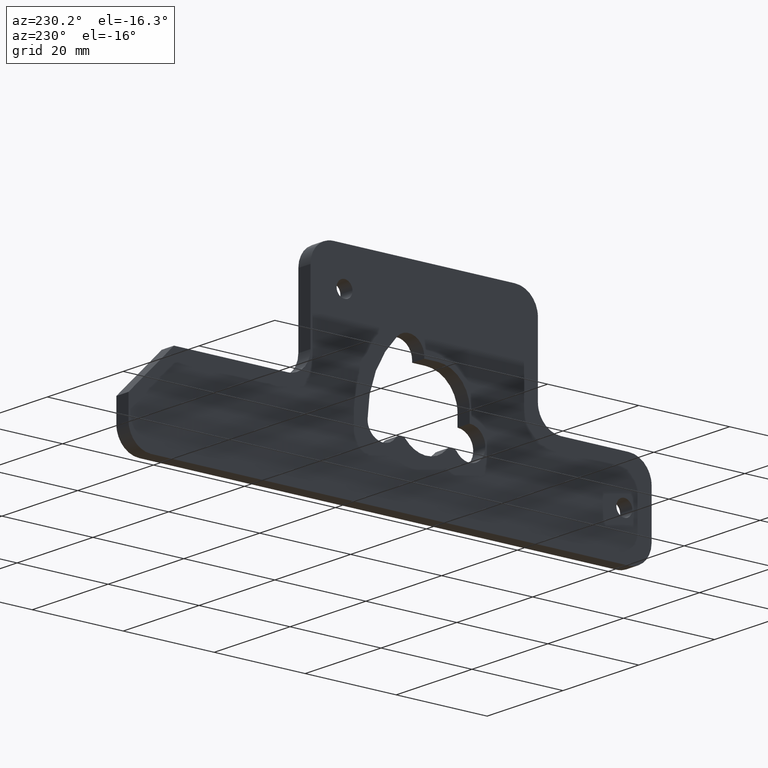
[diagram: clean part render]
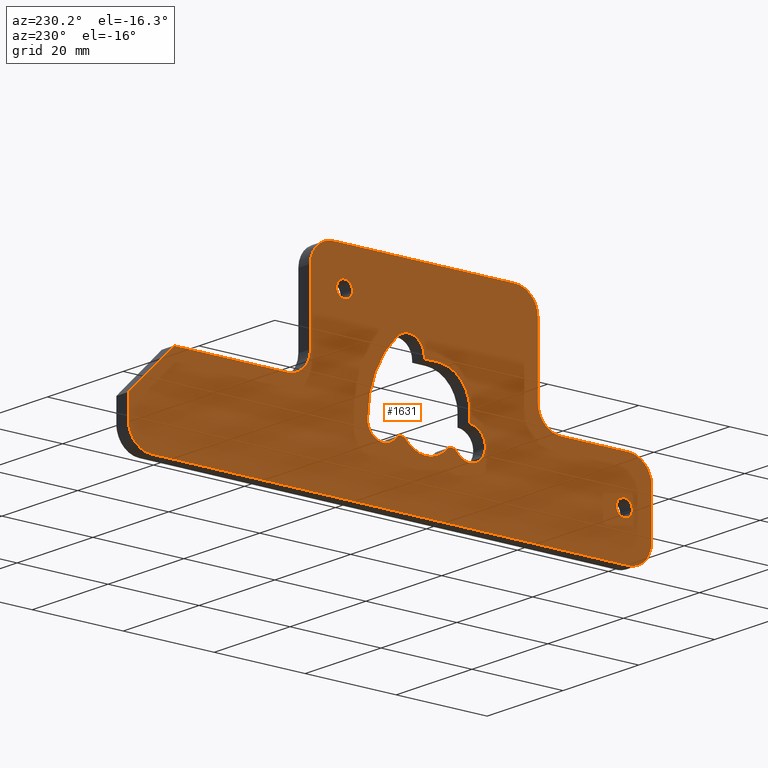
[diagram: same view with one face highlighted and labeled with its STEP entity id]
A machine part, auxiliary view. The second image highlights one B-rep face of the part: STEP entity #1631.
In plain terms, the highlighted face is a freeform B-spline surface patch.
Its self-contained STEP definition (entity closure, byte-faithful):
#62=CARTESIAN_POINT('',(0.0,-43.500000000000000,-3.249999999999901));
#63=VERTEX_POINT('',#62);
#64=CARTESIAN_POINT('',(8.326673E-017,-45.244605333949757,-4.862696581418814));
#65=VERTEX_POINT('',#64);
#66=CARTESIAN_POINT('',(0.0,-43.500000000000000,-3.249999999999901));
#67=CARTESIAN_POINT('',(0.0,-45.117683358434938,-3.249999999999901));
#68=CARTESIAN_POINT('',(8.326673E-017,-45.244605333949778,-4.862696581418814));
#76=(BOUNDED_CURVE()B_SPLINE_CURVE(2,(#66,#67,#68),.UNSPECIFIED.,.F.,.U.)B_SPLINE_CURVE_WITH_KNOTS((3,3),(0.0,0.236331300424976),.UNSPECIFIED.)CURVE()GEOMETRIC_REPRESENTATION_ITEM()RATIONAL_B_SPLINE_CURVE((1.0,0.723120658848639,0.969723355738171))REPRESENTATION_ITEM(''));
#77=EDGE_CURVE('',#63,#65,#76,.T.);
#79=CARTESIAN_POINT('',(8.326673E-017,-41.755394666050243,-5.137303418580987));
#80=VERTEX_POINT('',#79);
#81=CARTESIAN_POINT('',(8.326673E-017,-41.755394666050236,-5.137303418580987));
#82=CARTESIAN_POINT('',(0.0,-41.749999999999986,-5.068757688325587));
#83=CARTESIAN_POINT('',(0.0,-41.749999999999993,-4.999999999999901));
#84=CARTESIAN_POINT('',(0.0,-41.749999999999986,-3.249999999999901));
#85=CARTESIAN_POINT('',(0.0,-43.500000000000000,-3.249999999999901));
#93=(BOUNDED_CURVE()B_SPLINE_CURVE(2,(#81,#82,#83,#84,#85),.UNSPECIFIED.,.F.,.U.)B_SPLINE_CURVE_WITH_KNOTS((3,2,3),(0.736331300424976,0.750000000000000,1.0),.UNSPECIFIED.)CURVE()GEOMETRIC_REPRESENTATION_ITEM()RATIONAL_B_SPLINE_CURVE((0.969723355738171,0.983986122337908,1.0,0.707106781186547,1.0))REPRESENTATION_ITEM(''));
#94=EDGE_CURVE('',#80,#63,#93,.T.);
#161=CARTESIAN_POINT('',(0.0,-43.500000000000000,-6.749999999999901));
#162=VERTEX_POINT('',#161);
#163=CARTESIAN_POINT('',(8.326673E-017,-45.244605333949764,-4.862696581418815));
#164=CARTESIAN_POINT('',(0.0,-45.250000000000000,-4.931242311674215));
#165=CARTESIAN_POINT('',(0.0,-45.250000000000000,-4.999999999999901));
#166=CARTESIAN_POINT('',(0.0,-45.250000000000000,-6.749999999999902));
#167=CARTESIAN_POINT('',(0.0,-43.500000000000000,-6.749999999999901));
#175=(BOUNDED_CURVE()B_SPLINE_CURVE(2,(#163,#164,#165,#166,#167),.UNSPECIFIED.,.F.,.U.)B_SPLINE_CURVE_WITH_KNOTS((3,2,3),(0.236331300424976,0.250000000000000,0.500000000000000),.UNSPECIFIED.)CURVE()GEOMETRIC_REPRESENTATION_ITEM()RATIONAL_B_SPLINE_CURVE((0.969723355738171,0.983986122337908,1.0,0.707106781186547,1.0))REPRESENTATION_ITEM(''));
#176=EDGE_CURVE('',#65,#162,#175,.T.);
#210=CARTESIAN_POINT('',(0.0,-43.500000000000000,-6.749999999999901));
#211=CARTESIAN_POINT('',(0.0,-41.882316641565069,-6.749999999999901));
#212=CARTESIAN_POINT('',(8.326673E-017,-41.755394666050236,-5.137303418580987));
#220=(BOUNDED_CURVE()B_SPLINE_CURVE(2,(#210,#211,#212),.UNSPECIFIED.,.F.,.U.)B_SPLINE_CURVE_WITH_KNOTS((3,3),(0.500000000000000,0.736331300424975),.UNSPECIFIED.)CURVE()GEOMETRIC_REPRESENTATION_ITEM()RATIONAL_B_SPLINE_CURVE((1.0,0.723120658848641,0.969723355738169))REPRESENTATION_ITEM(''));
#221=EDGE_CURVE('',#162,#80,#220,.T.);
#244=CARTESIAN_POINT('',(0.0,18.0,23.750000000000000));
#245=VERTEX_POINT('',#244);
#246=CARTESIAN_POINT('',(8.326673E-017,16.255394666050240,22.137303418581080));
#247=VERTEX_POINT('',#246);
#248=CARTESIAN_POINT('',(0.0,18.0,23.750000000000000));
#249=CARTESIAN_POINT('',(0.0,16.382316641565069,23.749999999999996));
#250=CARTESIAN_POINT('',(8.326673E-017,16.255394666050247,22.137303418581080));
#258=(BOUNDED_CURVE()B_SPLINE_CURVE(2,(#248,#249,#250),.UNSPECIFIED.,.F.,.U.)B_SPLINE_CURVE_WITH_KNOTS((3,3),(0.0,0.236331300424976),.UNSPECIFIED.)CURVE()GEOMETRIC_REPRESENTATION_ITEM()RATIONAL_B_SPLINE_CURVE((1.0,0.723120658848639,0.969723355738171))REPRESENTATION_ITEM(''));
#259=EDGE_CURVE('',#245,#247,#258,.T.);
#261=CARTESIAN_POINT('',(8.326673E-017,19.744605333949760,21.862696581418920));
#262=VERTEX_POINT('',#261);
#263=CARTESIAN_POINT('',(8.326673E-017,19.744605333949760,21.862696581418920));
#264=CARTESIAN_POINT('',(0.0,19.749999999999996,21.931242311674318));
#265=CARTESIAN_POINT('',(0.0,19.750000000000000,22.0));
#266=CARTESIAN_POINT('',(0.0,19.749999999999996,23.749999999999996));
#267=CARTESIAN_POINT('',(0.0,18.0,23.750000000000000));
#275=(BOUNDED_CURVE()B_SPLINE_CURVE(2,(#263,#264,#265,#266,#267),.UNSPECIFIED.,.F.,.U.)B_SPLINE_CURVE_WITH_KNOTS((3,2,3),(0.736331300424976,0.750000000000000,1.0),.UNSPECIFIED.)CURVE()GEOMETRIC_REPRESENTATION_ITEM()RATIONAL_B_SPLINE_CURVE((0.969723355738171,0.983986122337908,1.0,0.707106781186547,1.0))REPRESENTATION_ITEM(''));
#276=EDGE_CURVE('',#262,#245,#275,.T.);
#343=CARTESIAN_POINT('',(0.0,18.0,20.250000000000000));
#344=VERTEX_POINT('',#343);
#345=CARTESIAN_POINT('',(8.326673E-017,16.255394666050247,22.137303418581080));
#346=CARTESIAN_POINT('',(0.0,16.250000000000000,22.068757688325686));
#347=CARTESIAN_POINT('',(0.0,16.250000000000000,22.0));
#348=CARTESIAN_POINT('',(0.0,16.249999999999993,20.249999999999993));
#349=CARTESIAN_POINT('',(0.0,18.0,20.250000000000000));
#357=(BOUNDED_CURVE()B_SPLINE_CURVE(2,(#345,#346,#347,#348,#349),.UNSPECIFIED.,.F.,.U.)B_SPLINE_CURVE_WITH_KNOTS((3,2,3),(0.236331300424976,0.250000000000000,0.500000000000000),.UNSPECIFIED.)CURVE()GEOMETRIC_REPRESENTATION_ITEM()RATIONAL_B_SPLINE_CURVE((0.969723355738171,0.983986122337908,1.0,0.707106781186547,1.0))REPRESENTATION_ITEM(''));
#358=EDGE_CURVE('',#247,#344,#357,.T.);
#392=CARTESIAN_POINT('',(0.0,18.0,20.250000000000000));
#393=CARTESIAN_POINT('',(0.0,19.617683358434945,20.250000000000004));
#394=CARTESIAN_POINT('',(8.326673E-017,19.744605333949767,21.862696581418916));
#402=(BOUNDED_CURVE()B_SPLINE_CURVE(2,(#392,#393,#394),.UNSPECIFIED.,.F.,.U.)B_SPLINE_CURVE_WITH_KNOTS((3,3),(0.500000000000000,0.736331300424977),.UNSPECIFIED.)CURVE()GEOMETRIC_REPRESENTATION_ITEM()RATIONAL_B_SPLINE_CURVE((1.0,0.723120658848638,0.969723355738173))REPRESENTATION_ITEM(''));
#403=EDGE_CURVE('',#344,#262,#402,.T.);
#426=CARTESIAN_POINT('',(0.0,6.764626871509701,-2.102435218486835));
#427=VERTEX_POINT('',#426);
#428=CARTESIAN_POINT('',(0.0,12.949999999999999,0.0));
#429=VERTEX_POINT('',#428);
#430=CARTESIAN_POINT('',(0.0,6.764626871509701,-2.102435218486837));
#431=CARTESIAN_POINT('',(0.0,8.270568713959827,-4.061740700380274));
#432=CARTESIAN_POINT('',(0.0,10.610284356979861,-3.266461180948823));
#433=CARTESIAN_POINT('',(0.0,12.949999999999891,-2.471181661517373));
#434=CARTESIAN_POINT('',(0.0,12.949999999999999,0.0));
#442=(BOUNDED_CURVE()B_SPLINE_CURVE(2,(#430,#431,#432,#433,#434),.UNSPECIFIED.,.F.,.U.)B_SPLINE_CURVE_WITH_KNOTS((3,2,3),(0.0,0.500000000000000,1.0),.UNSPECIFIED.)CURVE()GEOMETRIC_REPRESENTATION_ITEM()RATIONAL_B_SPLINE_CURVE((1.0,0.812964191323276,1.0,0.812964191323276,1.0))REPRESENTATION_ITEM(''));
#443=EDGE_CURVE('',#427,#429,#442,.T.);
#491=CARTESIAN_POINT('',(0.0,6.374547395093690,15.874547395093799));
#492=VERTEX_POINT('',#491);
#493=CARTESIAN_POINT('',(0.0,12.949999999999999,0.0));
#494=CARTESIAN_POINT('',(0.0,12.950000000000003,9.299094475276030));
#495=CARTESIAN_POINT('',(0.0,6.374547395093690,15.874547395093799));
#503=(BOUNDED_CURVE()B_SPLINE_CURVE(2,(#493,#494,#495),.UNSPECIFIED.,.F.,.U.)CURVE()GEOMETRIC_REPRESENTATION_ITEM()QUASI_UNIFORM_CURVE()RATIONAL_B_SPLINE_CURVE((1.0,0.923879532511286,1.0))REPRESENTATION_ITEM(''));
#504=EDGE_CURVE('',#429,#492,#503,.T.);
#548=CARTESIAN_POINT('',(0.0,0.485029000000000,13.435029000000201));
#549=VERTEX_POINT('',#548);
#550=CARTESIAN_POINT('',(0.0,6.374547395093682,15.874547395093790));
#551=CARTESIAN_POINT('',(0.0,4.744513316680972,17.504581473506498));
#552=CARTESIAN_POINT('',(0.0,2.614771158340536,16.622413387164141));
#553=CARTESIAN_POINT('',(0.0,0.485029000000099,15.740245300821782));
#554=CARTESIAN_POINT('',(0.0,0.485029000000000,13.435029000000201));
#562=(BOUNDED_CURVE()B_SPLINE_CURVE(2,(#550,#551,#552,#553,#554),.UNSPECIFIED.,.F.,.U.)B_SPLINE_CURVE_WITH_KNOTS((3,2,3),(0.0,0.500000000000000,1.0),.UNSPECIFIED.)CURVE()GEOMETRIC_REPRESENTATION_ITEM()RATIONAL_B_SPLINE_CURVE((1.0,0.831469612302546,1.0,0.831469612302546,1.0))REPRESENTATION_ITEM(''));
#563=EDGE_CURVE('',#492,#549,#562,.T.);
#596=CARTESIAN_POINT('',(0.0,0.485029000000000,13.0));
#597=VERTEX_POINT('',#596);
#598=CARTESIAN_POINT('',(0.0,0.485029000000000,13.0));
#599=CARTESIAN_POINT('',(0.0,0.485029000000000,13.435029000000201));
#600=QUASI_UNIFORM_CURVE('',1,(#598,#599),.UNSPECIFIED.,.F.,.U.);
#601=EDGE_CURVE('',#597,#549,#600,.T.);
#624=CARTESIAN_POINT('',(0.0,-2.500000000000000,13.0));
#625=VERTEX_POINT('',#624);
#626=CARTESIAN_POINT('',(0.0,-2.500000000000000,13.0));
#627=CARTESIAN_POINT('',(0.0,0.485029000000000,13.0));
#628=QUASI_UNIFORM_CURVE('',1,(#626,#627),.UNSPECIFIED.,.F.,.U.);
#629=EDGE_CURVE('',#625,#597,#628,.T.);
#661=CARTESIAN_POINT('',(0.0,-9.500000000000000,6.000000000000100));
#662=VERTEX_POINT('',#661);
#663=CARTESIAN_POINT('',(0.0,-2.500000000000000,13.0));
#664=CARTESIAN_POINT('',(0.0,-9.500000000000000,13.000000000000099));
#665=CARTESIAN_POINT('',(0.0,-9.500000000000000,6.000000000000100));
#673=(BOUNDED_CURVE()B_SPLINE_CURVE(2,(#663,#664,#665),.UNSPECIFIED.,.F.,.U.)CURVE()GEOMETRIC_REPRESENTATION_ITEM()QUASI_UNIFORM_CURVE()RATIONAL_B_SPLINE_CURVE((1.0,0.707106781186547,1.0))REPRESENTATION_ITEM(''));
#674=EDGE_CURVE('',#625,#662,#673,.T.);
#705=CARTESIAN_POINT('',(0.0,-9.500000000000000,3.450000000000000));
#706=VERTEX_POINT('',#705);
#707=CARTESIAN_POINT('',(0.0,-9.500000000000000,3.450000000000000));
#708=CARTESIAN_POINT('',(0.0,-9.500000000000000,6.000000000000100));
#709=QUASI_UNIFORM_CURVE('',1,(#707,#708),.UNSPECIFIED.,.F.,.U.);
#710=EDGE_CURVE('',#706,#662,#709,.T.);
#750=CARTESIAN_POINT('',(0.0,-6.764626664560860,-2.102434731092480));
#751=VERTEX_POINT('',#750);
#752=CARTESIAN_POINT('',(0.0,-9.500000000000000,3.449999999999999));
#753=CARTESIAN_POINT('',(0.0,-12.268154983296283,3.449999999999999));
#754=CARTESIAN_POINT('',(0.0,-12.868020258563091,0.747622590555284));
#755=CARTESIAN_POINT('',(0.0,-13.467885533829898,-1.954754818889431));
#756=CARTESIAN_POINT('',(0.0,-10.959714800434559,-3.125977079473279));
#757=CARTESIAN_POINT('',(0.0,-8.451544067039222,-4.297199340057126));
#758=CARTESIAN_POINT('',(0.0,-6.764626664560860,-2.102434731092480));
#766=(BOUNDED_CURVE()B_SPLINE_CURVE(2,(#752,#753,#754,#755,#756,#757,#758),.UNSPECIFIED.,.F.,.U.)B_SPLINE_CURVE_WITH_KNOTS((3,2,2,3),(0.0,0.333333333333333,0.666666666666667,1.0),.UNSPECIFIED.)CURVE()GEOMETRIC_REPRESENTATION_ITEM()RATIONAL_B_SPLINE_CURVE((1.0,0.779968653267858,1.0,0.779968653267858,1.0,0.779968653267858,1.0))REPRESENTATION_ITEM(''));
#767=EDGE_CURVE('',#706,#751,#766,.T.);
#811=CARTESIAN_POINT('',(0.0,-4.460267373332930,-2.013229990715830));
#812=VERTEX_POINT('',#811);
#813=CARTESIAN_POINT('',(0.0,-4.460267373332930,-2.013229990715830));
#814=CARTESIAN_POINT('',(0.0,-4.930644157821511,-1.490456621152774));
#815=CARTESIAN_POINT('',(0.0,-5.633357690820511,-1.517659669694363));
#816=CARTESIAN_POINT('',(0.0,-6.336071223819511,-1.544862718235952));
#817=CARTESIAN_POINT('',(0.0,-6.764626664560861,-2.102434731092479));
#825=(BOUNDED_CURVE()B_SPLINE_CURVE(2,(#813,#814,#815,#816,#817),.UNSPECIFIED.,.F.,.U.)B_SPLINE_CURVE_WITH_KNOTS((3,2,3),(0.0,0.500000000000000,1.0),.UNSPECIFIED.)CURVE()GEOMETRIC_REPRESENTATION_ITEM()RATIONAL_B_SPLINE_CURVE((1.0,0.905432286971826,1.0,0.905432286971826,1.0))REPRESENTATION_ITEM(''));
#826=EDGE_CURVE('',#812,#751,#825,.T.);
#868=CARTESIAN_POINT('',(0.0,4.460267373332910,-2.013229990715850));
#869=VERTEX_POINT('',#868);
#870=CARTESIAN_POINT('',(0.0,-4.460267373332929,-2.013229990715828));
#871=CARTESIAN_POINT('',(0.0,-2.672624544209053,-3.999999999999901));
#872=CARTESIAN_POINT('',(0.0,0.0,-3.999999999999900));
#873=CARTESIAN_POINT('',(0.0,2.672624544209034,-3.999999999999901));
#874=CARTESIAN_POINT('',(0.0,4.460267373332909,-2.013229990715852));
#882=(BOUNDED_CURVE()B_SPLINE_CURVE(2,(#870,#871,#872,#873,#874),.UNSPECIFIED.,.F.,.U.)B_SPLINE_CURVE_WITH_KNOTS((3,2,3),(0.0,0.500000000000000,1.0),.UNSPECIFIED.)CURVE()GEOMETRIC_REPRESENTATION_ITEM()RATIONAL_B_SPLINE_CURVE((1.0,0.913474593275402,1.0,0.913474593275402,1.0))REPRESENTATION_ITEM(''));
#883=EDGE_CURVE('',#812,#869,#882,.T.);
#925=CARTESIAN_POINT('',(0.0,6.764626871509701,-2.102435218486835));
#926=CARTESIAN_POINT('',(0.0,6.336071631441110,-1.544862854254390));
#927=CARTESIAN_POINT('',(0.0,5.633357946904417,-1.517659679607753));
#928=CARTESIAN_POINT('',(0.0,4.930644262367725,-1.490456504961116));
#929=CARTESIAN_POINT('',(0.0,4.460267373332910,-2.013229990715850));
#937=(BOUNDED_CURVE()B_SPLINE_CURVE(2,(#925,#926,#927,#928,#929),.UNSPECIFIED.,.F.,.U.)B_SPLINE_CURVE_WITH_KNOTS((3,2,3),(0.0,0.500000000000000,1.0),.UNSPECIFIED.)CURVE()GEOMETRIC_REPRESENTATION_ITEM()RATIONAL_B_SPLINE_CURVE((1.0,0.905432250709606,1.0,0.905432250709606,1.0))REPRESENTATION_ITEM(''));
#938=EDGE_CURVE('',#427,#869,#937,.T.);
#974=CARTESIAN_POINT('',(0.0,-29.500000000000000,5.000000000000100));
#975=VERTEX_POINT('',#974);
#976=CARTESIAN_POINT('',(0.0,-24.500000000000000,10.0));
#977=VERTEX_POINT('',#976);
#978=CARTESIAN_POINT('',(0.0,-29.500000000000000,5.0));
#979=CARTESIAN_POINT('',(0.0,-24.500000000000004,5.000000000000001));
#980=CARTESIAN_POINT('',(0.0,-24.500000000000000,10.0));
#988=(BOUNDED_CURVE()B_SPLINE_CURVE(2,(#978,#979,#980),.UNSPECIFIED.,.F.,.U.)CURVE()GEOMETRIC_REPRESENTATION_ITEM()QUASI_UNIFORM_CURVE()RATIONAL_B_SPLINE_CURVE((1.0,0.707106781186548,1.0))REPRESENTATION_ITEM(''));
#989=EDGE_CURVE('',#975,#977,#988,.T.);
#1026=CARTESIAN_POINT('',(0.0,-44.500000000000000,5.0));
#1027=VERTEX_POINT('',#1026);
#1028=CARTESIAN_POINT('',(0.0,-44.500000000000000,5.0));
#1029=CARTESIAN_POINT('',(0.0,-29.500000000000000,5.000000000000100));
#1030=QUASI_UNIFORM_CURVE('',1,(#1028,#1029),.UNSPECIFIED.,.F.,.U.);
#1031=EDGE_CURVE('',#1027,#975,#1030,.T.);
#1063=CARTESIAN_POINT('',(0.0,-49.500000000000000,-3.030901E-015));
#1064=VERTEX_POINT('',#1063);
#1065=CARTESIAN_POINT('',(0.0,-44.500000000000000,4.999999999999997));
#1066=CARTESIAN_POINT('',(0.0,-49.499999999999993,4.999999999999997));
#1067=CARTESIAN_POINT('',(0.0,-49.499999999999993,-2.724749E-015));
#1075=(BOUNDED_CURVE()B_SPLINE_CURVE(2,(#1065,#1066,#1067),.UNSPECIFIED.,.F.,.U.)CURVE()GEOMETRIC_REPRESENTATION_ITEM()QUASI_UNIFORM_CURVE()RATIONAL_B_SPLINE_CURVE((1.0,0.707106781186548,1.0))REPRESENTATION_ITEM(''));
#1076=EDGE_CURVE('',#1027,#1064,#1075,.T.);
#1107=CARTESIAN_POINT('',(0.0,-49.500000000000000,-9.999999999999799));
#1108=VERTEX_POINT('',#1107);
#1109=CARTESIAN_POINT('',(0.0,-49.500000000000000,-9.999999999999799));
#1110=CARTESIAN_POINT('',(0.0,-49.500000000000000,-3.030901E-015));
#1111=QUASI_UNIFORM_CURVE('',1,(#1109,#1110),.UNSPECIFIED.,.F.,.U.);
#1112=EDGE_CURVE('',#1108,#1064,#1111,.T.);
#1144=CARTESIAN_POINT('',(0.0,-44.500000000000000,-15.0));
#1145=VERTEX_POINT('',#1144);
#1146=CARTESIAN_POINT('',(0.0,-49.499999999999993,-9.999999999999799));
#1147=CARTESIAN_POINT('',(0.0,-49.499999999999993,-14.999999999999796));
#1148=CARTESIAN_POINT('',(0.0,-44.500000000000000,-15.0));
#1156=(BOUNDED_CURVE()B_SPLINE_CURVE(2,(#1146,#1147,#1148),.UNSPECIFIED.,.F.,.U.)CURVE()GEOMETRIC_REPRESENTATION_ITEM()QUASI_UNIFORM_CURVE()RATIONAL_B_SPLINE_CURVE((1.0,0.707106781186548,1.0))REPRESENTATION_ITEM(''));
#1157=EDGE_CURVE('',#1108,#1145,#1156,.T.);
#1188=CARTESIAN_POINT('',(0.0,60.500000000000000,-14.999999999999799));
#1189=VERTEX_POINT('',#1188);
#1190=CARTESIAN_POINT('',(0.0,60.500000000000000,-14.999999999999799));
#1191=CARTESIAN_POINT('',(0.0,-44.500000000000000,-15.0));
#1192=QUASI_UNIFORM_CURVE('',1,(#1190,#1191),.UNSPECIFIED.,.F.,.U.);
#1193=EDGE_CURVE('',#1189,#1145,#1192,.T.);
#1225=CARTESIAN_POINT('',(0.0,65.500000000000000,-9.999999999999799));
#1226=VERTEX_POINT('',#1225);
#1227=CARTESIAN_POINT('',(0.0,60.500000000000000,-14.999999999999799));
#1228=CARTESIAN_POINT('',(0.0,65.500000000000000,-14.999999999999796));
#1229=CARTESIAN_POINT('',(0.0,65.500000000000000,-9.999999999999799));
#1237=(BOUNDED_CURVE()B_SPLINE_CURVE(2,(#1227,#1228,#1229),.UNSPECIFIED.,.F.,.U.)CURVE()GEOMETRIC_REPRESENTATION_ITEM()QUASI_UNIFORM_CURVE()RATIONAL_B_SPLINE_CURVE((1.0,0.707106781186548,1.0))REPRESENTATION_ITEM(''));
#1238=EDGE_CURVE('',#1189,#1226,#1237,.T.);
#1269=CARTESIAN_POINT('',(0.0,65.500000000000000,-4.999999999999901));
#1270=VERTEX_POINT('',#1269);
#1271=CARTESIAN_POINT('',(0.0,65.500000000000000,-4.999999999999901));
#1272=CARTESIAN_POINT('',(0.0,65.500000000000000,-9.999999999999799));
#1273=QUASI_UNIFORM_CURVE('',1,(#1271,#1272),.UNSPECIFIED.,.F.,.U.);
#1274=EDGE_CURVE('',#1270,#1226,#1273,.T.);
#1297=CARTESIAN_POINT('',(0.0,55.500000000000000,5.000000000000100));
#1298=VERTEX_POINT('',#1297);
#1299=CARTESIAN_POINT('',(0.0,55.500000000000000,5.000000000000100));
#1300=CARTESIAN_POINT('',(0.0,65.500000000000000,-4.999999999999901));
#1301=QUASI_UNIFORM_CURVE('',1,(#1299,#1300),.UNSPECIFIED.,.F.,.U.);
#1302=EDGE_CURVE('',#1298,#1270,#1301,.T.);
#1325=CARTESIAN_POINT('',(0.0,30.500000000000000,5.000000000000100));
#1326=VERTEX_POINT('',#1325);
#1327=CARTESIAN_POINT('',(0.0,30.500000000000000,5.000000000000100));
#1328=CARTESIAN_POINT('',(0.0,55.500000000000000,5.000000000000100));
#1329=QUASI_UNIFORM_CURVE('',1,(#1327,#1328),.UNSPECIFIED.,.F.,.U.);
#1330=EDGE_CURVE('',#1326,#1298,#1329,.T.);
#1362=CARTESIAN_POINT('',(0.0,25.500000000000000,10.0));
#1363=VERTEX_POINT('',#1362);
#1364=CARTESIAN_POINT('',(0.0,25.500000000000000,10.0));
#1365=CARTESIAN_POINT('',(0.0,25.499999999999993,5.000000000000001));
#1366=CARTESIAN_POINT('',(0.0,30.500000000000000,5.000000000000100));
#1374=(BOUNDED_CURVE()B_SPLINE_CURVE(2,(#1364,#1365,#1366),.UNSPECIFIED.,.F.,.U.)CURVE()GEOMETRIC_REPRESENTATION_ITEM()QUASI_UNIFORM_CURVE()RATIONAL_B_SPLINE_CURVE((1.0,0.707106781186548,1.0))REPRESENTATION_ITEM(''));
#1375=EDGE_CURVE('',#1363,#1326,#1374,.T.);
#1406=CARTESIAN_POINT('',(0.0,25.500000000000000,25.0));
#1407=VERTEX_POINT('',#1406);
#1408=CARTESIAN_POINT('',(0.0,25.500000000000000,25.0));
#1409=CARTESIAN_POINT('',(0.0,25.500000000000000,10.0));
#1410=QUASI_UNIFORM_CURVE('',1,(#1408,#1409),.UNSPECIFIED.,.F.,.U.);
#1411=EDGE_CURVE('',#1407,#1363,#1410,.T.);
#1443=CARTESIAN_POINT('',(0.0,20.500000000000000,30.0));
#1444=VERTEX_POINT('',#1443);
#1445=CARTESIAN_POINT('',(0.0,25.500000000000000,25.0));
#1446=CARTESIAN_POINT('',(0.0,25.500000000000007,30.000000000000004));
#1447=CARTESIAN_POINT('',(0.0,20.500000000000000,30.0));
#1455=(BOUNDED_CURVE()B_SPLINE_CURVE(2,(#1445,#1446,#1447),.UNSPECIFIED.,.F.,.U.)CURVE()GEOMETRIC_REPRESENTATION_ITEM()QUASI_UNIFORM_CURVE()RATIONAL_B_SPLINE_CURVE((1.0,0.707106781186548,1.0))REPRESENTATION_ITEM(''));
#1456=EDGE_CURVE('',#1407,#1444,#1455,.T.);
#1487=CARTESIAN_POINT('',(0.0,-19.500000000000000,30.0));
#1488=VERTEX_POINT('',#1487);
#1489=CARTESIAN_POINT('',(0.0,-19.500000000000000,30.0));
#1490=CARTESIAN_POINT('',(0.0,20.500000000000000,30.0));
#1491=QUASI_UNIFORM_CURVE('',1,(#1489,#1490),.UNSPECIFIED.,.F.,.U.);
#1492=EDGE_CURVE('',#1488,#1444,#1491,.T.);
#1524=CARTESIAN_POINT('',(0.0,-24.500000000000000,25.0));
#1525=VERTEX_POINT('',#1524);
#1526=CARTESIAN_POINT('',(0.0,-19.500000000000000,30.0));
#1527=CARTESIAN_POINT('',(0.0,-24.500000000000004,30.000000000000004));
#1528=CARTESIAN_POINT('',(0.0,-24.500000000000000,25.0));
#1536=(BOUNDED_CURVE()B_SPLINE_CURVE(2,(#1526,#1527,#1528),.UNSPECIFIED.,.F.,.U.)CURVE()GEOMETRIC_REPRESENTATION_ITEM()QUASI_UNIFORM_CURVE()RATIONAL_B_SPLINE_CURVE((1.0,0.707106781186548,1.0))REPRESENTATION_ITEM(''));
#1537=EDGE_CURVE('',#1488,#1525,#1536,.T.);
#1568=CARTESIAN_POINT('',(0.0,-24.500000000000000,10.0));
#1569=CARTESIAN_POINT('',(0.0,-24.500000000000000,25.0));
#1570=QUASI_UNIFORM_CURVE('',1,(#1568,#1569),.UNSPECIFIED.,.F.,.U.);
#1571=EDGE_CURVE('',#977,#1525,#1570,.T.);
#1583=CARTESIAN_POINT('',(0.0,-55.244249777107697,32.247749912781259));
#1584=CARTESIAN_POINT('',(0.0,71.244252861648050,32.247749912781259));
#1585=CARTESIAN_POINT('',(0.0,-55.244249777107697,-17.247751119775319));
#1586=CARTESIAN_POINT('',(0.0,71.244252861648050,-17.247751119775319));
#1587=B_SPLINE_SURFACE_WITH_KNOTS('',1,1,((#1583,#1585),(#1584,#1586)),.UNSPECIFIED.,.F.,.F.,.U.,(2,2),(2,2),(0.0,126.488502638755800),(0.0,49.495501032556582),.UNSPECIFIED.);
#1588=ORIENTED_EDGE('',*,*,#1571,.T.);
#1589=ORIENTED_EDGE('',*,*,#1537,.F.);
#1590=ORIENTED_EDGE('',*,*,#1492,.T.);
#1591=ORIENTED_EDGE('',*,*,#1456,.F.);
#1592=ORIENTED_EDGE('',*,*,#1411,.T.);
#1593=ORIENTED_EDGE('',*,*,#1375,.T.);
#1594=ORIENTED_EDGE('',*,*,#1330,.T.);
#1595=ORIENTED_EDGE('',*,*,#1302,.T.);
#1596=ORIENTED_EDGE('',*,*,#1274,.T.);
#1597=ORIENTED_EDGE('',*,*,#1238,.F.);
#1598=ORIENTED_EDGE('',*,*,#1193,.T.);
#1599=ORIENTED_EDGE('',*,*,#1157,.F.);
#1600=ORIENTED_EDGE('',*,*,#1112,.T.);
#1601=ORIENTED_EDGE('',*,*,#1076,.F.);
#1602=ORIENTED_EDGE('',*,*,#1031,.T.);
#1603=ORIENTED_EDGE('',*,*,#989,.T.);
#1604=EDGE_LOOP('',(#1588,#1589,#1590,#1591,#1592,#1593,#1594,#1595,#1596,#1597,#1598,#1599,#1600,#1601,#1602,#1603));
#1605=FACE_OUTER_BOUND('',#1604,.T.);
#1606=ORIENTED_EDGE('',*,*,#883,.T.);
#1607=ORIENTED_EDGE('',*,*,#938,.F.);
#1608=ORIENTED_EDGE('',*,*,#443,.T.);
#1609=ORIENTED_EDGE('',*,*,#504,.T.);
#1610=ORIENTED_EDGE('',*,*,#563,.T.);
#1611=ORIENTED_EDGE('',*,*,#601,.F.);
#1612=ORIENTED_EDGE('',*,*,#629,.F.);
#1613=ORIENTED_EDGE('',*,*,#674,.T.);
#1614=ORIENTED_EDGE('',*,*,#710,.F.);
#1615=ORIENTED_EDGE('',*,*,#767,.T.);
#1616=ORIENTED_EDGE('',*,*,#826,.F.);
#1617=EDGE_LOOP('',(#1606,#1607,#1608,#1609,#1610,#1611,#1612,#1613,#1614,#1615,#1616));
#1618=FACE_BOUND('',#1617,.T.);
#1619=ORIENTED_EDGE('',*,*,#403,.T.);
#1620=ORIENTED_EDGE('',*,*,#276,.T.);
#1621=ORIENTED_EDGE('',*,*,#259,.T.);
#1622=ORIENTED_EDGE('',*,*,#358,.T.);
#1623=EDGE_LOOP('',(#1619,#1620,#1621,#1622));
#1624=FACE_BOUND('',#1623,.T.);
#1625=ORIENTED_EDGE('',*,*,#221,.T.);
#1626=ORIENTED_EDGE('',*,*,#94,.T.);
#1627=ORIENTED_EDGE('',*,*,#77,.T.);
#1628=ORIENTED_EDGE('',*,*,#176,.T.);
#1629=EDGE_LOOP('',(#1625,#1626,#1627,#1628));
#1630=FACE_BOUND('',#1629,.T.);
#1631=ADVANCED_FACE('',(#1605,#1618,#1624,#1630),#1587,.T.);